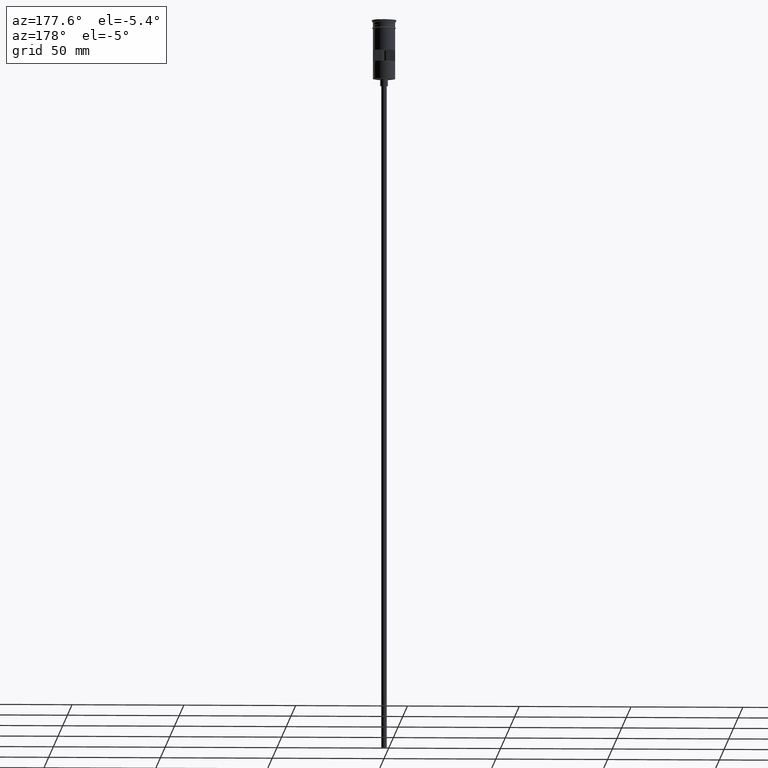
[diagram: clean part render]
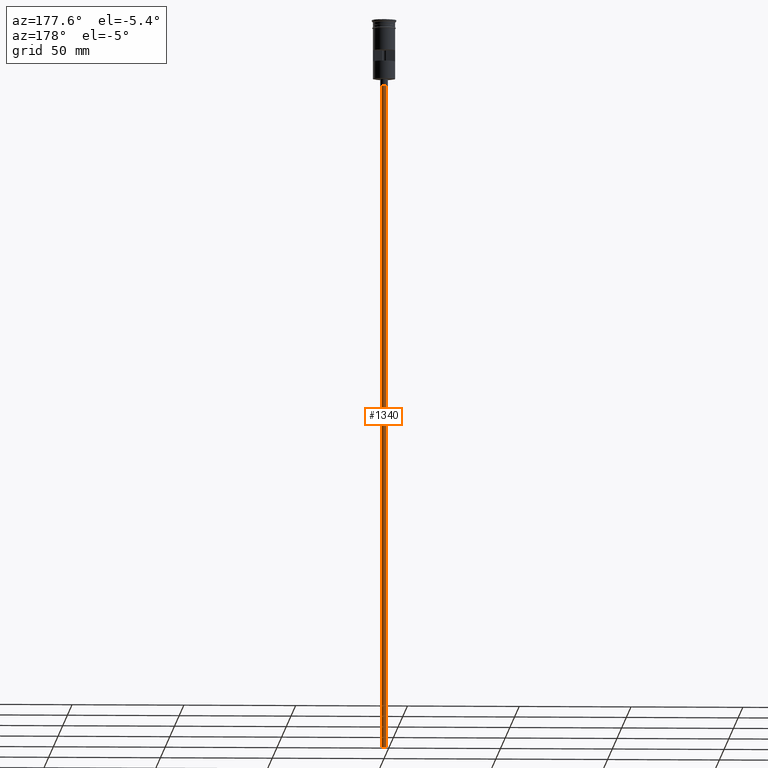
[diagram: same view with one face highlighted and labeled with its STEP entity id]
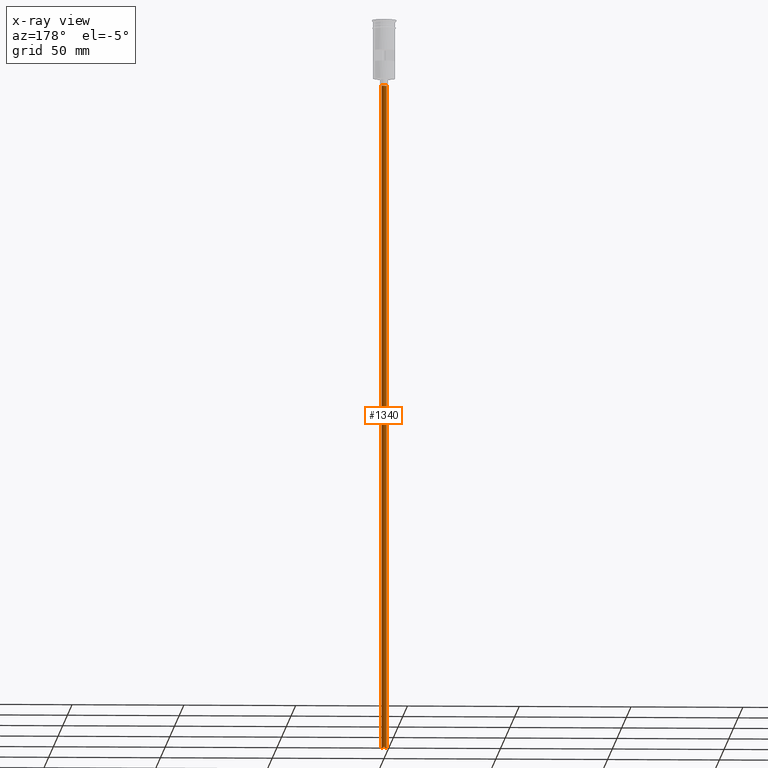
[diagram: x-ray of the same camera — body ghosted, the highlighted face saturated]
A machine part, auxiliary view. The second image highlights one B-rep face of the part: STEP entity #1340.
The next image is the same camera in x-ray: the body ghosted, the highlighted face saturated — about 0% of this face is hidden behind the body in this view.
In plain terms, the highlighted cylindrical surface (edge-blend (fillet) strip) has radius 1.25 mm, axis along (-0, -0, 1).
Its self-contained STEP definition (entity closure, byte-faithful):
#35 = CIRCLE ( 'NONE', #319, 1.250000000000000000 ) ;
#45 = ORIENTED_EDGE ( 'NONE', *, *, #611, .F. ) ;
#84 = DIRECTION ( 'NONE',  ( -0.000000000000000000, -0.000000000000000000, 1.000000000000000000 ) ) ;
#123 = LINE ( 'NONE', #890, #378 ) ;
#191 = CARTESIAN_POINT ( 'NONE',  ( -1.250000000000000000, 1.530808498934191571E-16, -326.5000000000000000 ) ) ;
#219 = DIRECTION ( 'NONE',  ( -1.000000000000000000, 0.000000000000000000, 0.000000000000000000 ) ) ;
#267 = LINE ( 'NONE', #630, #866 ) ;
#304 = VERTEX_POINT ( 'NONE', #462 ) ;
#319 = AXIS2_PLACEMENT_3D ( 'NONE', #693, #1199, #1190 ) ;
#356 = DIRECTION ( 'NONE',  ( 1.000000000000000000, 0.000000000000000000, 0.000000000000000000 ) ) ;
#378 = VECTOR ( 'NONE', #1360, 1000.000000000000000 ) ;
#414 = ORIENTED_EDGE ( 'NONE', *, *, #1144, .T. ) ;
#456 = EDGE_CURVE ( 'NONE', #1047, #802, #267, .T. ) ;
#462 = CARTESIAN_POINT ( 'NONE',  ( 1.250000000000000000, 0.000000000000000000, -29.50000000000000000 ) ) ;
#467 = FACE_OUTER_BOUND ( 'NONE', #976, .T. ) ;
#475 = DIRECTION ( 'NONE',  ( 0.000000000000000000, 0.000000000000000000, -1.000000000000000000 ) ) ;
#611 = EDGE_CURVE ( 'NONE', #1047, #1251, #35, .T. ) ;
#630 = CARTESIAN_POINT ( 'NONE',  ( -1.250000000000000000, 1.530808498934191571E-16, -326.5000000000000000 ) ) ;
#647 = AXIS2_PLACEMENT_3D ( 'NONE', #1102, #475, #219 ) ;
#693 = CARTESIAN_POINT ( 'NONE',  ( 0.000000000000000000, 0.000000000000000000, -326.5000000000000000 ) ) ;
#802 = VERTEX_POINT ( 'NONE', #1261 ) ;
#809 = EDGE_CURVE ( 'NONE', #1251, #304, #123, .T. ) ;
#866 = VECTOR ( 'NONE', #1142, 1000.000000000000000 ) ;
#890 = CARTESIAN_POINT ( 'NONE',  ( 1.250000000000000000, 0.000000000000000000, -326.5000000000000000 ) ) ;
#976 = EDGE_LOOP ( 'NONE', ( #45, #1110, #414, #1306 ) ) ;
#1047 = VERTEX_POINT ( 'NONE', #191 ) ;
#1083 = AXIS2_PLACEMENT_3D ( 'NONE', #1339, #84, #356 ) ;
#1102 = CARTESIAN_POINT ( 'NONE',  ( 0.000000000000000000, 0.000000000000000000, -29.50000000000000000 ) ) ;
#1110 = ORIENTED_EDGE ( 'NONE', *, *, #456, .T. ) ;
#1142 = DIRECTION ( 'NONE',  ( -0.000000000000000000, -0.000000000000000000, 1.000000000000000000 ) ) ;
#1144 = EDGE_CURVE ( 'NONE', #802, #304, #1215, .T. ) ;
#1190 = DIRECTION ( 'NONE',  ( -1.000000000000000000, 0.000000000000000000, 0.000000000000000000 ) ) ;
#1199 = DIRECTION ( 'NONE',  ( 0.000000000000000000, 0.000000000000000000, -1.000000000000000000 ) ) ;
#1205 = CYLINDRICAL_SURFACE ( 'NONE', #1083, 1.250000000000000000 ) ;
#1215 = CIRCLE ( 'NONE', #647, 1.250000000000000000 ) ;
#1251 = VERTEX_POINT ( 'NONE', #1407 ) ;
#1261 = CARTESIAN_POINT ( 'NONE',  ( -1.250000000000000000, 1.530808498934191571E-16, -29.50000000000000000 ) ) ;
#1306 = ORIENTED_EDGE ( 'NONE', *, *, #809, .F. ) ;
#1339 = CARTESIAN_POINT ( 'NONE',  ( 0.000000000000000000, 0.000000000000000000, -326.5000000000000000 ) ) ;
#1340 = ADVANCED_FACE ( 'NONE', ( #467 ), #1205, .T. ) ;
#1360 = DIRECTION ( 'NONE',  ( -0.000000000000000000, -0.000000000000000000, 1.000000000000000000 ) ) ;
#1407 = CARTESIAN_POINT ( 'NONE',  ( 1.250000000000000000, 0.000000000000000000, -326.5000000000000000 ) ) ;